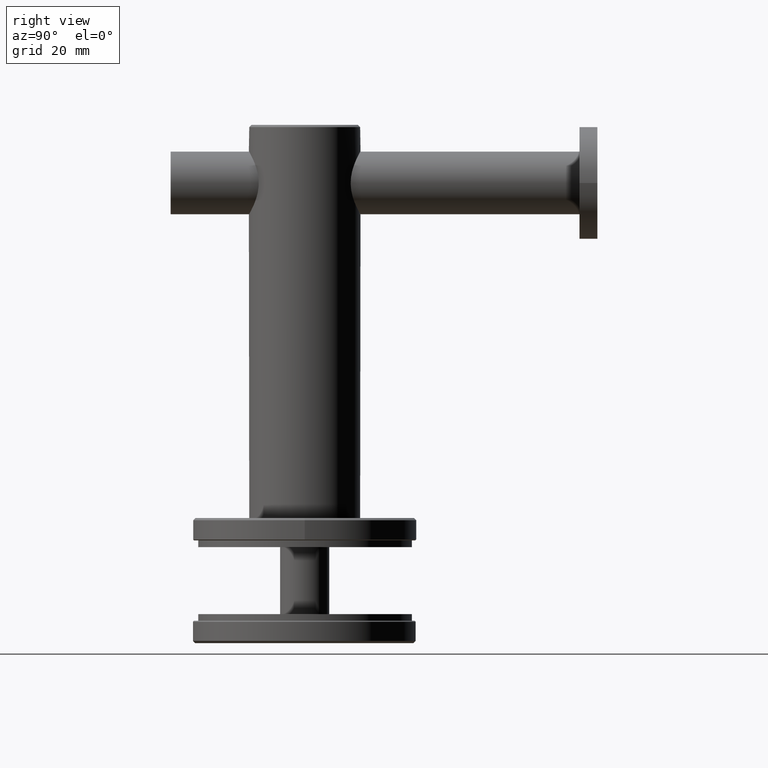
[diagram: clean part render]
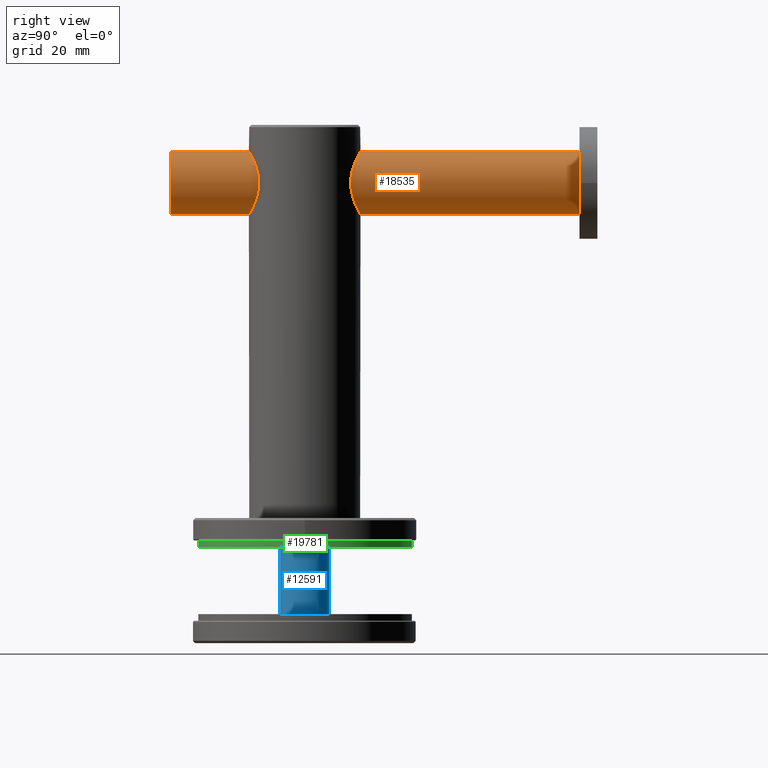
[diagram: same view with three faces highlighted in distinct colors, each labeled with its STEP entity id]
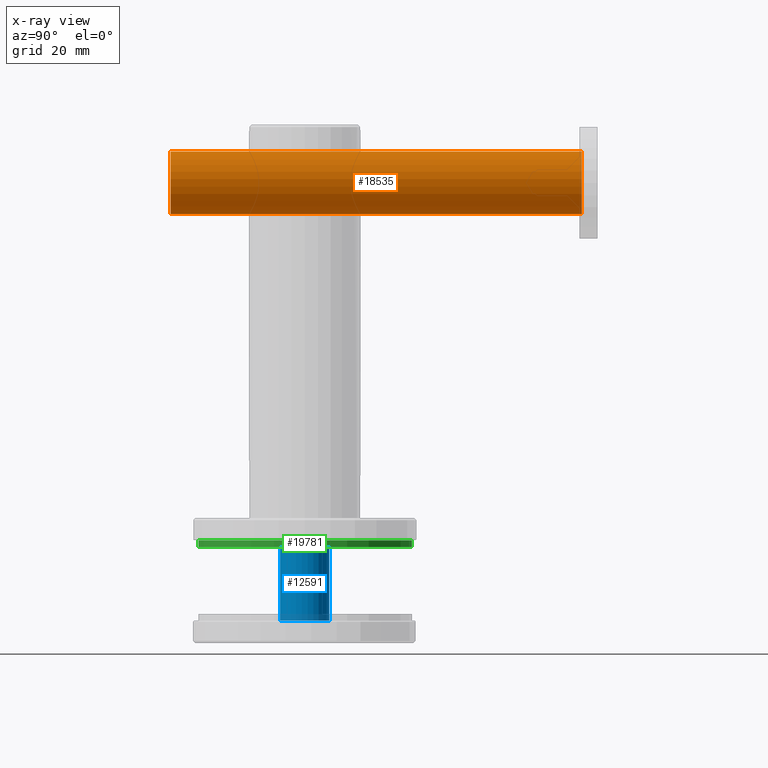
[diagram: x-ray of the same camera — body ghosted, the three highlighted faces saturated]
A machine part, right view with three faces highlighted in distinct colors.
The next image is the same camera in x-ray (body ghosted, the three faces saturated) — at least one of them is partly hidden behind the body in this view.
Their STEP definitions:

[orange] entity #18535 — the highlighted cylindrical surface (bore or boss wall) has radius 7 mm, axis along (-0, -1, -0).
#270 = EDGE_LOOP ( 'NONE', ( #3977 ) ) ;
#1527 = FACE_OUTER_BOUND ( 'NONE', #11577, .T. ) ;
#2718 = CARTESIAN_POINT ( 'NONE',  ( 0.0000000000000000000, 92.00000000000000000, 6.999999999999999100 ) ) ;
#3325 = DIRECTION ( 'NONE',  ( 0.0000000000000000000, 0.0000000000000000000, -1.000000000000000000 ) ) ;
#3497 = EDGE_CURVE ( 'NONE', #7557, #7557, #3639, .T. ) ;
#3639 = CIRCLE ( 'NONE', #7926, 6.999999999999999100 ) ;
#3977 = ORIENTED_EDGE ( 'NONE', *, *, #17959, .F. ) ;
#4232 = AXIS2_PLACEMENT_3D ( 'NONE', #8047, #14647, #3325 ) ;
#6258 = DIRECTION ( 'NONE',  ( 0.0000000000000000000, 1.000000000000000000, 0.0000000000000000000 ) ) ;
#7557 = VERTEX_POINT ( 'NONE', #10311 ) ;
#7926 = AXIS2_PLACEMENT_3D ( 'NONE', #8858, #16919, #8926 ) ;
#8047 = CARTESIAN_POINT ( 'NONE',  ( 0.0000000000000000000, 92.00000000000000000, 0.0000000000000000000 ) ) ;
#8080 = FACE_OUTER_BOUND ( 'NONE', #270, .T. ) ;
#8858 = CARTESIAN_POINT ( 'NONE',  ( 0.0000000000000000000, 0.0000000000000000000, 0.0000000000000000000 ) ) ;
#8926 = DIRECTION ( 'NONE',  ( 0.0000000000000000000, 0.0000000000000000000, 1.000000000000000000 ) ) ;
#10311 = CARTESIAN_POINT ( 'NONE',  ( 0.0000000000000000000, 0.0000000000000000000, 6.999999999999999100 ) ) ;
#10933 = DIRECTION ( 'NONE',  ( 0.0000000000000000000, 0.0000000000000000000, 1.000000000000000000 ) ) ;
#11577 = EDGE_LOOP ( 'NONE', ( #20649 ) ) ;
#14609 = VERTEX_POINT ( 'NONE', #2718 ) ;
#14647 = DIRECTION ( 'NONE',  ( -0.0000000000000000000, -1.000000000000000000, -0.0000000000000000000 ) ) ;
#15103 = CARTESIAN_POINT ( 'NONE',  ( 0.0000000000000000000, 92.00000000000000000, 0.0000000000000000000 ) ) ;
#15809 = AXIS2_PLACEMENT_3D ( 'NONE', #15103, #6258, #10933 ) ;
#16919 = DIRECTION ( 'NONE',  ( 0.0000000000000000000, 1.000000000000000000, 0.0000000000000000000 ) ) ;
#17959 = EDGE_CURVE ( 'NONE', #14609, #14609, #18602, .T. ) ;
#18535 = ADVANCED_FACE ( 'NONE', ( #8080, #1527 ), #19340, .T. ) ;
#18602 = CIRCLE ( 'NONE', #15809, 6.999999999999999100 ) ;
#19340 = CYLINDRICAL_SURFACE ( 'NONE', #4232, 6.999999999999999100 ) ;
#20649 = ORIENTED_EDGE ( 'NONE', *, *, #3497, .T. ) ;

[blue] entity #12591 — the highlighted cylindrical surface (bore or boss wall) has radius 5.5 mm, axis along (-0, -0, 1).
#248 = AXIS2_PLACEMENT_3D ( 'NONE', #15095, #18267, #4122 ) ;
#1005 = CYLINDRICAL_SURFACE ( 'NONE', #19271, 5.500000000000000000 ) ;
#1104 = DIRECTION ( 'NONE',  ( 0.0000000000000000000, 0.0000000000000000000, -1.000000000000000000 ) ) ;
#1168 = CARTESIAN_POINT ( 'NONE',  ( 0.0000000000000000000, 18.00000000000000000, 0.0000000000000000000 ) ) ;
#2263 = CIRCLE ( 'NONE', #15644, 5.500000000000000000 ) ;
#4035 = VERTEX_POINT ( 'NONE', #11991 ) ;
#4122 = DIRECTION ( 'NONE',  ( 0.0000000000000000000, 0.0000000000000000000, 1.000000000000000000 ) ) ;
#5300 = FACE_OUTER_BOUND ( 'NONE', #19995, .T. ) ;
#5566 = VERTEX_POINT ( 'NONE', #12470 ) ;
#5921 = CARTESIAN_POINT ( 'NONE',  ( 0.0000000000000000000, 0.0000000000000000000, 0.0000000000000000000 ) ) ;
#6025 = EDGE_CURVE ( 'NONE', #4035, #4035, #17152, .T. ) ;
#6134 = ORIENTED_EDGE ( 'NONE', *, *, #6025, .F. ) ;
#7665 = DIRECTION ( 'NONE',  ( 0.0000000000000000000, 1.000000000000000000, 0.0000000000000000000 ) ) ;
#7791 = DIRECTION ( 'NONE',  ( -0.0000000000000000000, -1.000000000000000000, -0.0000000000000000000 ) ) ;
#8769 = EDGE_LOOP ( 'NONE', ( #6134 ) ) ;
#11991 = CARTESIAN_POINT ( 'NONE',  ( 0.0000000000000000000, 18.00000000000000000, 5.500000000000000000 ) ) ;
#12470 = CARTESIAN_POINT ( 'NONE',  ( 0.0000000000000000000, 0.0000000000000000000, 5.500000000000000000 ) ) ;
#12591 = ADVANCED_FACE ( 'NONE', ( #19823, #5300 ), #1005, .T. ) ;
#15095 = CARTESIAN_POINT ( 'NONE',  ( 0.0000000000000000000, 18.00000000000000000, 0.0000000000000000000 ) ) ;
#15644 = AXIS2_PLACEMENT_3D ( 'NONE', #5921, #7665, #20545 ) ;
#17152 = CIRCLE ( 'NONE', #248, 5.500000000000000000 ) ;
#18267 = DIRECTION ( 'NONE',  ( 0.0000000000000000000, 1.000000000000000000, 0.0000000000000000000 ) ) ;
#18862 = ORIENTED_EDGE ( 'NONE', *, *, #19295, .T. ) ;
#19271 = AXIS2_PLACEMENT_3D ( 'NONE', #1168, #7791, #1104 ) ;
#19295 = EDGE_CURVE ( 'NONE', #5566, #5566, #2263, .T. ) ;
#19823 = FACE_OUTER_BOUND ( 'NONE', #8769, .T. ) ;
#19995 = EDGE_LOOP ( 'NONE', ( #18862 ) ) ;
#20545 = DIRECTION ( 'NONE',  ( 0.0000000000000000000, 0.0000000000000000000, 1.000000000000000000 ) ) ;

[green] entity #19781 — the highlighted cylindrical surface (bore or boss wall) has radius 24 mm, axis along (-0, -0, 1).
#93 = CARTESIAN_POINT ( 'NONE',  ( 0.0000000000000000000, 1.500000000000000000, 0.0000000000000000000 ) ) ;
#164 = DIRECTION ( 'NONE',  ( 0.0000000000000000000, 0.0000000000000000000, 1.000000000000000000 ) ) ;
#834 = EDGE_LOOP ( 'NONE', ( #10422 ) ) ;
#1771 = FACE_OUTER_BOUND ( 'NONE', #16861, .T. ) ;
#3315 = DIRECTION ( 'NONE',  ( 0.0000000000000000000, 1.000000000000000000, 0.0000000000000000000 ) ) ;
#3526 = CIRCLE ( 'NONE', #13682, 24.00000000000000400 ) ;
#3905 = DIRECTION ( 'NONE',  ( -0.0000000000000000000, -1.000000000000000000, -0.0000000000000000000 ) ) ;
#5116 = CARTESIAN_POINT ( 'NONE',  ( 0.0000000000000000000, 0.0000000000000000000, 0.0000000000000000000 ) ) ;
#5637 = CARTESIAN_POINT ( 'NONE',  ( 0.0000000000000000000, 0.0000000000000000000, 24.00000000000000400 ) ) ;
#5999 = AXIS2_PLACEMENT_3D ( 'NONE', #5116, #17857, #13319 ) ;
#6577 = FACE_OUTER_BOUND ( 'NONE', #834, .T. ) ;
#10216 = DIRECTION ( 'NONE',  ( 0.0000000000000000000, 0.0000000000000000000, -1.000000000000000000 ) ) ;
#10316 = VERTEX_POINT ( 'NONE', #5637 ) ;
#10422 = ORIENTED_EDGE ( 'NONE', *, *, #12862, .T. ) ;
#11492 = EDGE_CURVE ( 'NONE', #18822, #18822, #3526, .T. ) ;
#11919 = CARTESIAN_POINT ( 'NONE',  ( 0.0000000000000000000, 1.500000000000000000, 24.00000000000000400 ) ) ;
#12563 = ORIENTED_EDGE ( 'NONE', *, *, #11492, .F. ) ;
#12862 = EDGE_CURVE ( 'NONE', #10316, #10316, #16825, .T. ) ;
#13319 = DIRECTION ( 'NONE',  ( 0.0000000000000000000, 0.0000000000000000000, 1.000000000000000000 ) ) ;
#13682 = AXIS2_PLACEMENT_3D ( 'NONE', #93, #3315, #164 ) ;
#15109 = CYLINDRICAL_SURFACE ( 'NONE', #20159, 24.00000000000000400 ) ;
#16825 = CIRCLE ( 'NONE', #5999, 24.00000000000000400 ) ;
#16861 = EDGE_LOOP ( 'NONE', ( #12563 ) ) ;
#17857 = DIRECTION ( 'NONE',  ( 0.0000000000000000000, 1.000000000000000000, 0.0000000000000000000 ) ) ;
#18330 = CARTESIAN_POINT ( 'NONE',  ( 0.0000000000000000000, 1.500000000000000000, 0.0000000000000000000 ) ) ;
#18822 = VERTEX_POINT ( 'NONE', #11919 ) ;
#19781 = ADVANCED_FACE ( 'NONE', ( #1771, #6577 ), #15109, .T. ) ;
#20159 = AXIS2_PLACEMENT_3D ( 'NONE', #18330, #3905, #10216 ) ;